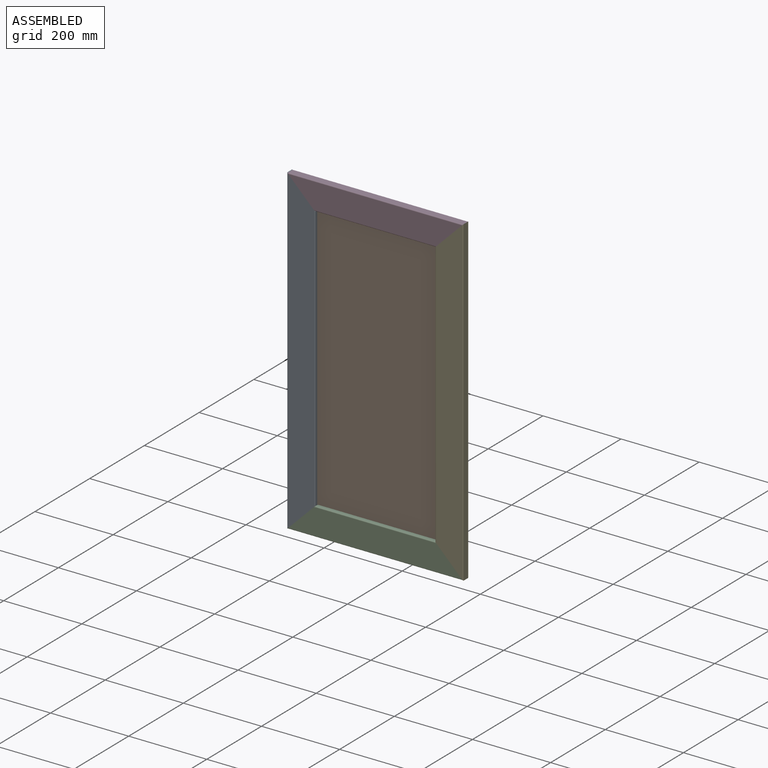
[diagram: assembled view]
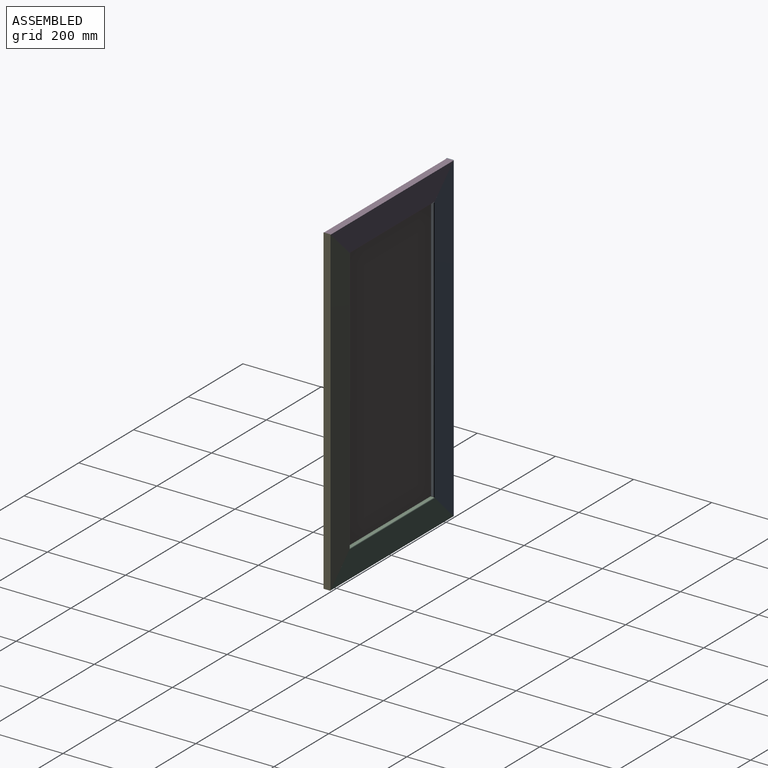
[diagram: assembled view, second angle]
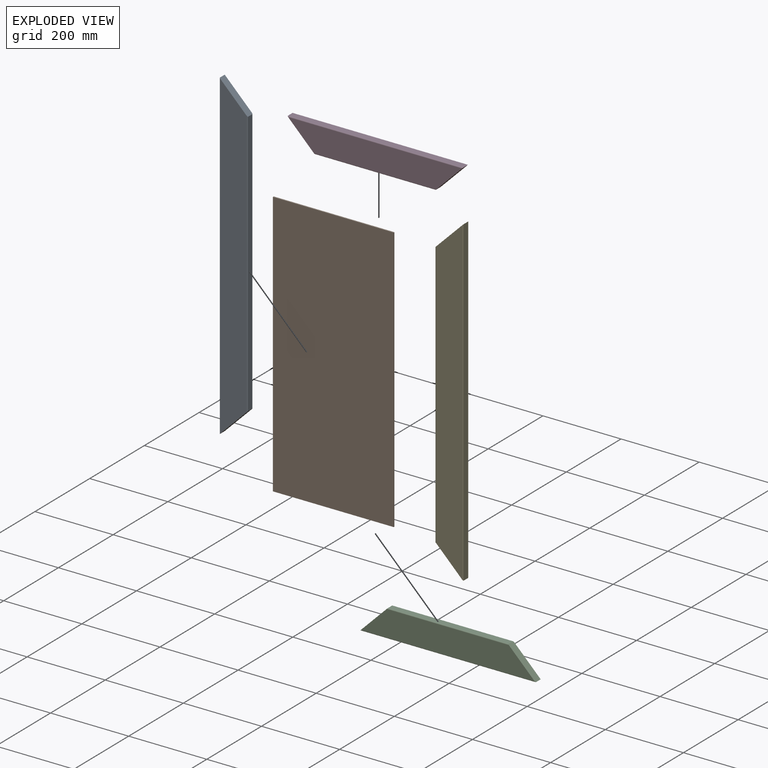
[diagram: exploded view]
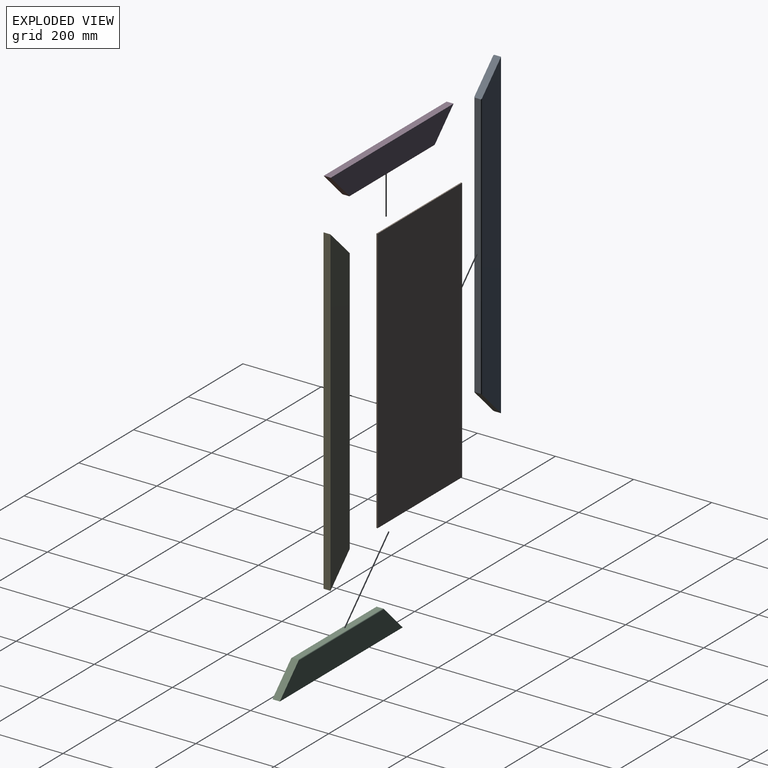
[diagram: exploded view, second angle]
ASSEMBLY  parts=5 mates=4
PART A: 9 faces, bbox 71.7x19x824.7 mm
  f0: plane 71.71x71.71mm, normal (0.71,0,0.71), area 1923.2mm2, adj f1,f3,f4,f5,f6,f7,f8
  f1: plane 824.65x17mm, normal (-1,0,0), area 14019.1mm2, adj f0,f2,f5,f6
  f2: plane 71.71x71.71mm, normal (0.71,0,-0.71), area 1923.2mm2, adj f1,f3,f4,f5,f6,f7,f8
  f3: plane 681.24x15mm, normal (1,0,0), area 10218.5mm2, adj f0,f2,f7,f8
  f4: plane 820.65x67.71mm, normal (0,-1,0), area 50981.2mm2, adj f0,f2,f6,f7
  f5: plane 824.65x69.71mm, normal (0,1,0), area 52626.5mm2, adj f0,f1,f2,f8
  f6: cylinder r=2mm len=824.65mm, axis (0,0,1), area 2586.2mm2, adj f0,f1,f2,f4
  f7: cylinder r=2mm len=685.24mm, axis (0,0,-1), area 2144.7mm2, adj f0,f2,f3,f4
  f8: cylinder r=2mm len=685.24mm, axis (0,0,1), area 2144.7mm2, adj f0,f2,f3,f5
PART B: 6 faces, bbox 309x3x681.2 mm
  f0: plane 681.24x3mm, normal (1,0,0), area 2043.7mm2, adj f1,f3,f4,f5
  f1: plane 309x3mm, normal (0,0,1), area 927mm2, adj f0,f2,f4,f5
  f2: plane 681.24x3mm, normal (-1,0,0), area 2043.7mm2, adj f1,f3,f4,f5
  f3: plane 309x3mm, normal (0,0,-1), area 927mm2, adj f0,f2,f4,f5
  f4: plane 681.24x309mm, normal (0,-1,0), area 210503.2mm2, adj f0,f1,f2,f3
  f5: plane 681.24x309mm, normal (0,1,0), area 210503.2mm2, adj f0,f1,f2,f3
PART C: 9 faces, bbox 449x19x70 mm
  f0: plane 449x17mm, normal (0,0,1), area 7633mm2, adj f1,f3,f5,f6
  f1: plane 70x70mm, normal (-0.71,0,-0.71), area 1877.3mm2, adj f0,f2,f4,f5,f6,f7,f8
  f2: plane 309x15mm, normal (0,0,-1), area 4635mm2, adj f1,f3,f7,f8
  f3: plane 70x70mm, normal (0.71,0,-0.71), area 1877.3mm2, adj f0,f2,f4,f5,f6,f7,f8
  f4: plane 445x66mm, normal (0,-1,0), area 25014mm2, adj f1,f3,f6,f7
  f5: plane 449x68mm, normal (0,1,0), area 25908mm2, adj f0,f1,f3,f8
  f6: cylinder r=2mm len=449mm, axis (1,0,0), area 1406mm2, adj f0,f1,f3,f4
  f7: cylinder r=2mm len=313mm, axis (-1,0,0), area 975.3mm2, adj f1,f2,f3,f4
  f8: cylinder r=2mm len=313mm, axis (1,0,0), area 975.3mm2, adj f1,f2,f3,f5
PART D: same geometry as C
PART E: same geometry as A
PLACE A t=(366.6,-133.43,0)mm
PLACE B t=(1177.39,-141.43,0.85)mm
PLACE C rot(axis=(0,-1,0),180deg) t=(2198.66,-133.43,2.06)mm
PLACE D t=(156.13,-133.43,-2.06)mm
PLACE E rot(axis=(0,1,0),180deg) t=(1988.19,-133.43,0)mm
MATE fastened C.f3 <-> A.f2  axis (-0.71,0,0.71) through (987.87,-142.93,-376.5)mm
MATE fastened D.f1 <-> A.f0  axis (-0.71,0,-0.71) through (987.87,-142.93,376.5)mm
MATE fastened B.f1 <-> D.f2  axis (0,0,1) through (1177.39,-142.93,341.47)mm
MATE fastened E.f2 <-> D.f3  axis (-0.71,0,0.71) through (1366.92,-142.93,376.5)mm
